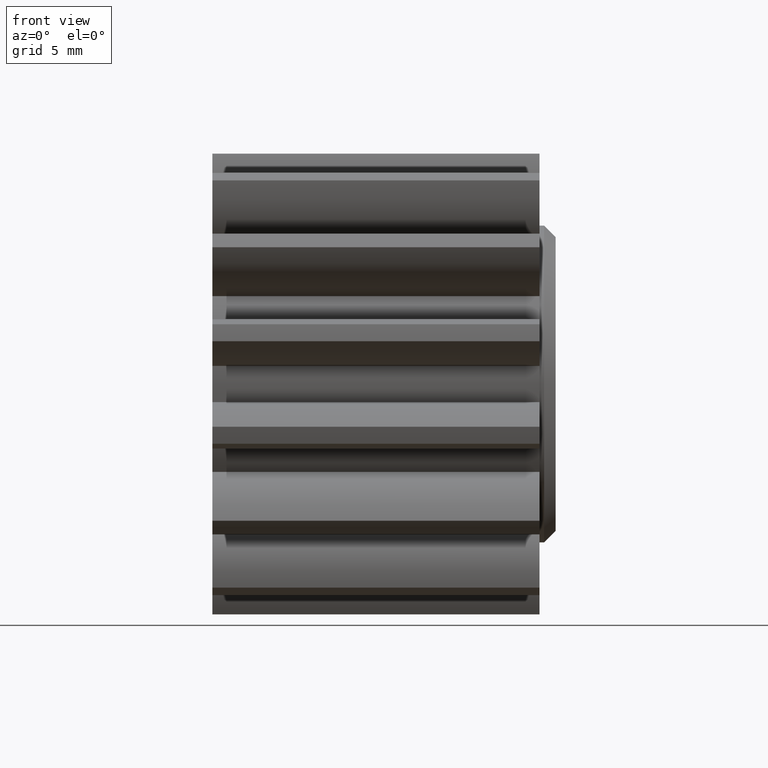
[diagram: clean part render]
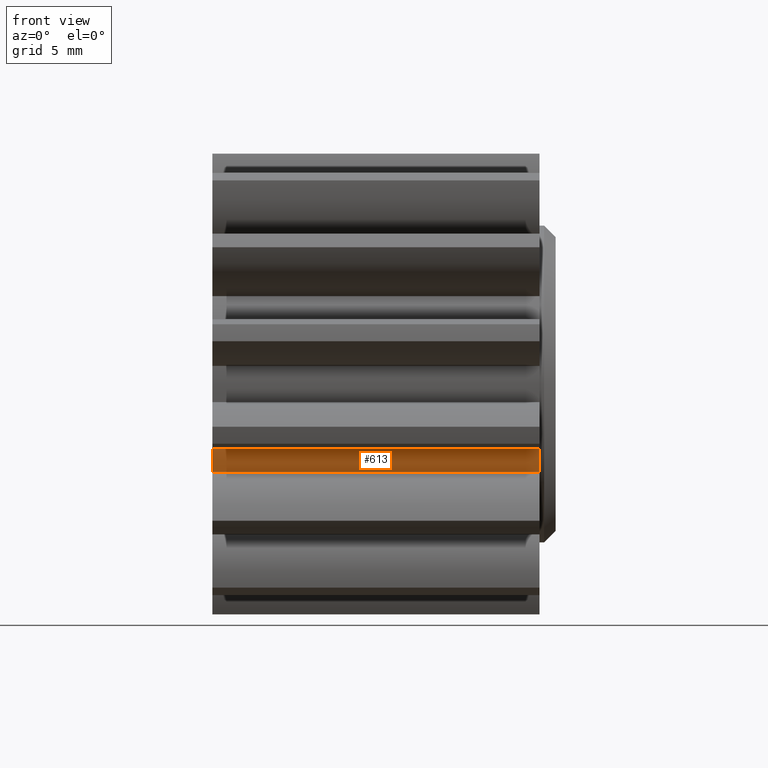
[diagram: same view with one face highlighted and labeled with its STEP entity id]
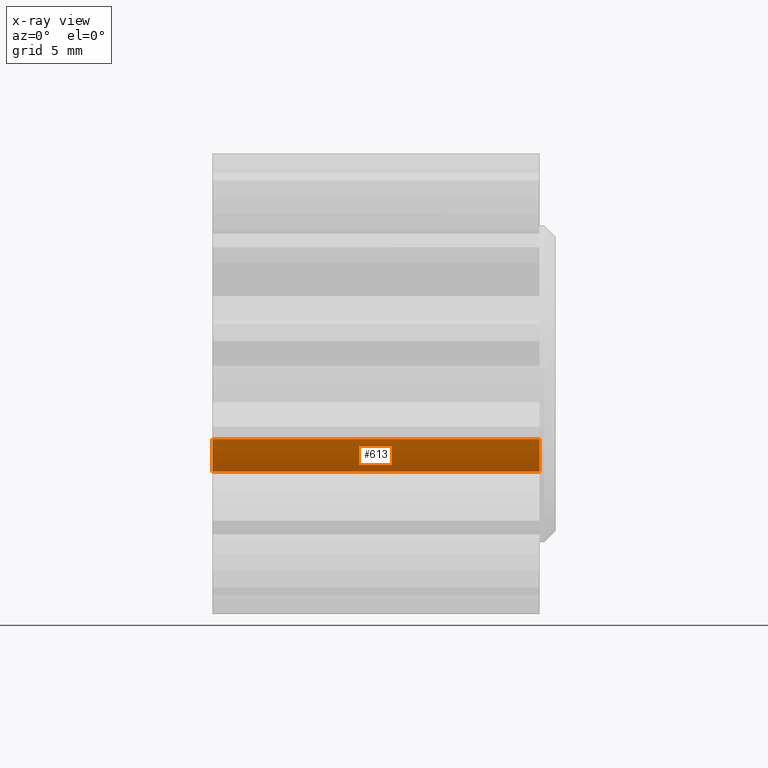
[diagram: x-ray of the same camera — body ghosted, the highlighted face saturated]
A machine part, front view. The second image highlights one B-rep face of the part: STEP entity #613.
The next image is the same camera in x-ray: the body ghosted, the highlighted face saturated — about 0% of this face is hidden behind the body in this view.
In plain terms, the highlighted cylindrical surface (partial cylindrical patch) has radius 7.3152 mm, axis along (-1, -0, 0).
Its self-contained STEP definition (entity closure, byte-faithful):
#7 = VERTEX_POINT ( 'NONE', #52 ) ;
#26 = CIRCLE ( 'NONE', #2456, 0.2880000000000000300 ) ;
#36 = AXIS2_PLACEMENT_3D ( 'NONE', #184, #395, #394 ) ;
#52 = CARTESIAN_POINT ( 'NONE',  ( 0.0000000000000000000, -0.2442420171492632700, -0.1526100817733187000 ) ) ;
#166 = ORIENTED_EDGE ( 'NONE', *, *, #528, .T. ) ;
#184 = CARTESIAN_POINT ( 'NONE',  ( 0.5679999999999998400, 0.0000000000000000000, 0.0000000000000000000 ) ) ;
#246 = ORIENTED_EDGE ( 'NONE', *, *, #1523, .T. ) ;
#254 = VERTEX_POINT ( 'NONE', #1636 ) ;
#394 = DIRECTION ( 'NONE',  ( 0.0000000000000000000, -0.4338837391175651700, 0.9009688679024158200 ) ) ;
#395 = DIRECTION ( 'NONE',  ( -1.000000000000000000, 0.0000000000000000000, 0.0000000000000000000 ) ) ;
#417 = VECTOR ( 'NONE', #501, 39.37007874015748100 ) ;
#474 = CARTESIAN_POINT ( 'NONE',  ( 0.0000000000000000000, 0.0000000000000000000, 0.0000000000000000000 ) ) ;
#501 = DIRECTION ( 'NONE',  ( -1.000000000000000000, -0.0000000000000000000, 0.0000000000000000000 ) ) ;
#528 = EDGE_CURVE ( 'NONE', #632, #1659, #1224, .T. ) ;
#613 = ADVANCED_FACE ( 'NONE', ( #1510 ), #1454, .T. ) ;
#632 = VERTEX_POINT ( 'NONE', #906 ) ;
#686 = EDGE_CURVE ( 'NONE', #632, #7, #2465, .T. ) ;
#788 = AXIS2_PLACEMENT_3D ( 'NONE', #871, #869, #1376 ) ;
#821 = DIRECTION ( 'NONE',  ( 0.0000000000000000000, -0.4338837391175651700, 0.9009688679024158200 ) ) ;
#869 = DIRECTION ( 'NONE',  ( -1.000000000000000000, -0.0000000000000000000, 0.0000000000000000000 ) ) ;
#871 = CARTESIAN_POINT ( 'NONE',  ( 0.5679999999999998400, 0.0000000000000000000, 0.0000000000000000000 ) ) ;
#902 = DIRECTION ( 'NONE',  ( -1.000000000000000000, -0.0000000000000000000, 0.0000000000000000000 ) ) ;
#906 = CARTESIAN_POINT ( 'NONE',  ( 0.5679999999999998400, -0.2442420171492632700, -0.1526100817733187000 ) ) ;
#911 = ORIENTED_EDGE ( 'NONE', *, *, #686, .F. ) ;
#1043 = CARTESIAN_POINT ( 'NONE',  ( 0.5679999999999998400, -0.2715977733503710500, -0.09580526870230317300 ) ) ;
#1224 = CIRCLE ( 'NONE', #36, 0.2880000000000000300 ) ;
#1284 = DIRECTION ( 'NONE',  ( -1.000000000000000000, 0.0000000000000000000, 0.0000000000000000000 ) ) ;
#1376 = DIRECTION ( 'NONE',  ( 0.0000000000000000000, 0.0000000000000000000, 1.000000000000000000 ) ) ;
#1409 = EDGE_LOOP ( 'NONE', ( #1591, #911, #166, #246 ) ) ;
#1454 = CYLINDRICAL_SURFACE ( 'NONE', #788, 0.2880000000000000300 ) ;
#1510 = FACE_OUTER_BOUND ( 'NONE', #1409, .T. ) ;
#1523 = EDGE_CURVE ( 'NONE', #1659, #254, #1908, .T. ) ;
#1591 = ORIENTED_EDGE ( 'NONE', *, *, #1988, .F. ) ;
#1636 = CARTESIAN_POINT ( 'NONE',  ( 0.0000000000000000000, -0.2715977733503710500, -0.09580526870230317300 ) ) ;
#1659 = VERTEX_POINT ( 'NONE', #1043 ) ;
#1741 = VECTOR ( 'NONE', #902, 39.37007874015748100 ) ;
#1877 = CARTESIAN_POINT ( 'NONE',  ( 0.5679999999999998400, -0.2715977733503710500, -0.09580526870230317300 ) ) ;
#1908 = LINE ( 'NONE', #1877, #417 ) ;
#1988 = EDGE_CURVE ( 'NONE', #7, #254, #26, .T. ) ;
#2050 = CARTESIAN_POINT ( 'NONE',  ( 0.5679999999999998400, -0.2442420171492632700, -0.1526100817733187000 ) ) ;
#2456 = AXIS2_PLACEMENT_3D ( 'NONE', #474, #1284, #821 ) ;
#2465 = LINE ( 'NONE', #2050, #1741 ) ;